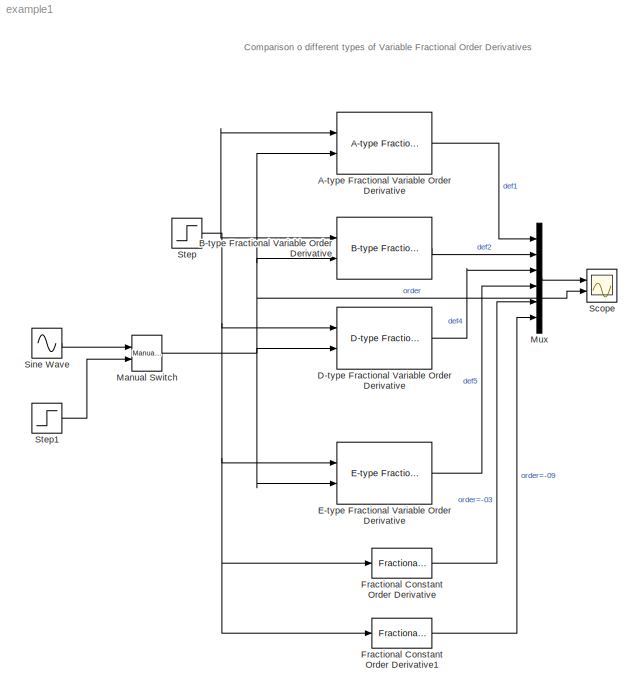
MODEL example1
KIND model
BLOCK [Reference] A-type Fractional Variable Order Derivative  REF=voderiv/A-type Fractional Variable Order Derivative
  N = 1
  Nbuf = 500
  Ports = [2, 1]
  SourceBlock = voderiv/A-type Fractional Variable Order Derivative
  SourceType = Variable Fractional Order Derivative 1st type
  Ts = 0.02
BLOCK [Reference] B-type Fractional Variable Order Derivative  REF=voderiv/B-type Fractional Variable Order Derivative
  N = 1
  Nbuf = 500
  Ports = [2, 1]
  SourceBlock = voderiv/B-type Fractional Variable Order Derivative
  SourceType = Variable Fractional Order Derivative 2nd type
  Ts = 0.02
BLOCK [Reference] D-type Fractional Variable Order Derivative  REF=voderiv/D-type Fractional Variable Order Derivative
  N = 1
  Nbuf = 500
  Ports = [2, 1]
  SourceBlock = voderiv/D-type Fractional Variable Order Derivative
  SourceType = Variable Fractional Order Derivative 4th type
  Ts = 0.02
BLOCK [Reference] E-type Fractional Variable Order Derivative  REF=voderiv/E-type Fractional Variable Order Derivative
  N = 1
  Nbuf = 500
  Ports = [2, 1]
  SourceBlock = voderiv/E-type Fractional Variable Order Derivative
  SourceType = Variable Fractional Order Derivative 5th type
  Ts = 0.02
BLOCK [Reference] Fractional Constant Order Derivative  REF=voderiv/Fractional Constant Order Derivative
  N = -0.3
  Nbuf = 500
  Ports = [1, 1]
  SourceBlock = voderiv/Fractional Constant Order Derivative
  SourceType = Fractional Order Derivative
  Ts = 0.02
BLOCK [Reference] Fractional Constant Order Derivative1  REF=voderiv/Fractional Constant Order Derivative
  N = -0.9
  Nbuf = 500
  Ports = [1, 1]
  SourceBlock = voderiv/Fractional Constant Order Derivative
  SourceType = Fractional Order Derivative
  Ts = 0.02
BLOCK [Reference] Manual Switch  REF=simulink/Signal\nRouting/Manual Switch
  FunctionWithSeparateData = off
  Ports = [2, 1]
  RTWMemSecDataConstants = Inherit from model
  RTWMemSecDataInternal = Inherit from model
  RTWMemSecDataParameters = Inherit from model
  RTWMemSecFuncExecute = Inherit from model
  RTWMemSecFuncInitTerm = Inherit from model
  ShowPortLabels = FromPortIcon
  SourceBlock = simulink/Signal\nRouting/Manual Switch
  SourceType = Manual Switch
  SystemSampleTime = -1
  action = 0
  sw = 0
  varsize = off
BLOCK [Mux] Mux
  DisplayOption = bar
  Inputs = 6
  Ports = [6, 1]
BLOCK [Scope] Scope
  DataFormat = StructureWithTime
  Floating = off
  NumInputPorts = 2
  Ports = [2]
  SampleTime = 0
  TickLabels = on
  YMax = 5~5
  YMin = -5~-5
BLOCK [Sin] Sine Wave
  Amplitude = 0.3
  Bias = -0.6
  Frequency = 1
  Offset = 0
  Phase = 0
  Ports = [0, 1]
  SampleTime = 0.02
  Samples = 10
BLOCK [Step] Step
  SampleTime = 0.02
  Time = 0
BLOCK [Step] Step1
  After = -0.9
  Before = -0.3
  SampleTime = 0.02
  Time = 5
ANNOTATION (root): Comparison o different types of Variable Fractional Order Derivatives
LINE A-type Fractional Variable Order Derivative:1 -> Mux:1
LINE B-type Fractional Variable Order Derivative:1 -> Mux:2
LINE D-type Fractional Variable Order Derivative:1 -> Mux:3
LINE E-type Fractional Variable Order Derivative:1 -> Mux:4
LINE Fractional Constant Order Derivative1:1 -> Mux:6
LINE Fractional Constant Order Derivative:1 -> Mux:5
NET Manual Switch:1 -> A-type Fractional Variable Order Derivative:2, B-type Fractional Variable Order Derivative:2, D-type Fractional Variable Order Derivative:2, E-type Fractional Variable Order Derivative:2, Scope:2
LINE Mux:1 -> Scope:1
LINE Sine Wave:1 -> Manual Switch:1
LINE Step1:1 -> Manual Switch:2
NET Step:1 -> A-type Fractional Variable Order Derivative:1, B-type Fractional Variable Order Derivative:1, D-type Fractional Variable Order Derivative:1, E-type Fractional Variable Order Derivative:1, Fractional Constant Order Derivative1:1, Fractional Constant Order Derivative:1
note: NET lines group one-source signal fan-out (src -> all destinations, sorted); 1:1 wires keep LINE
